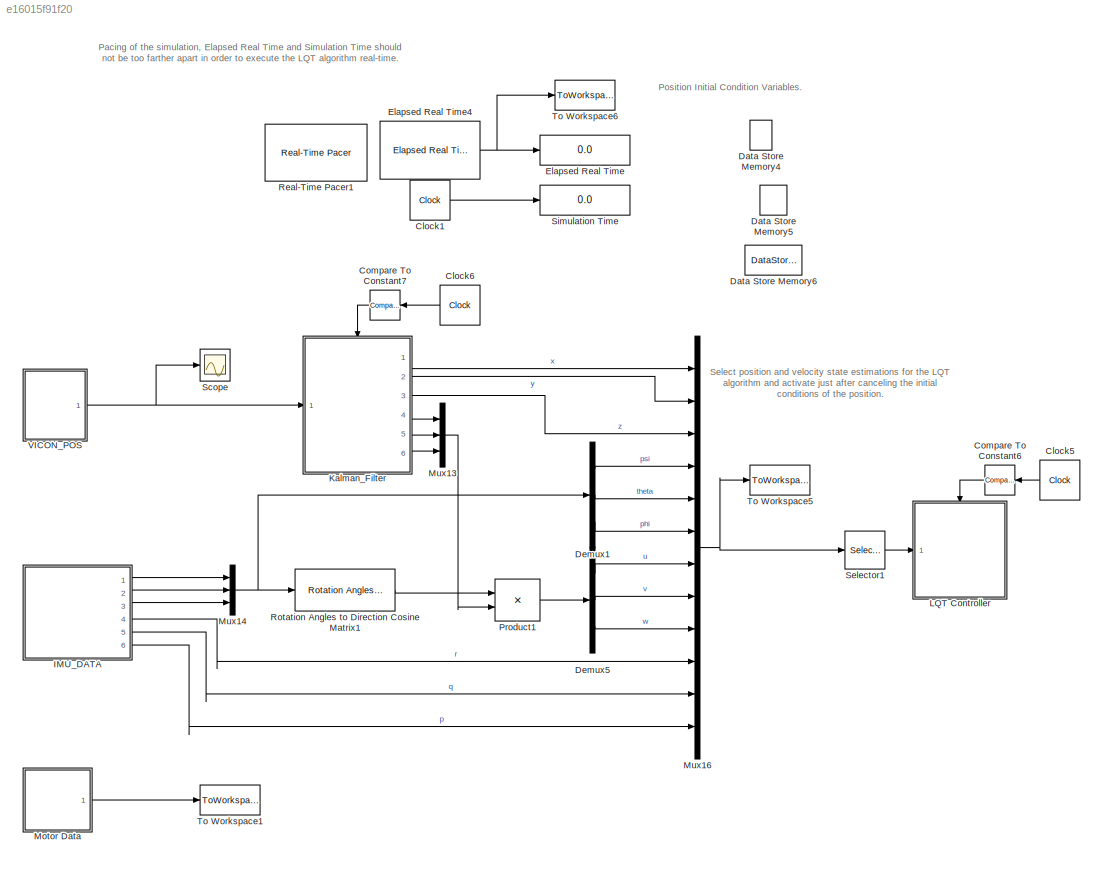
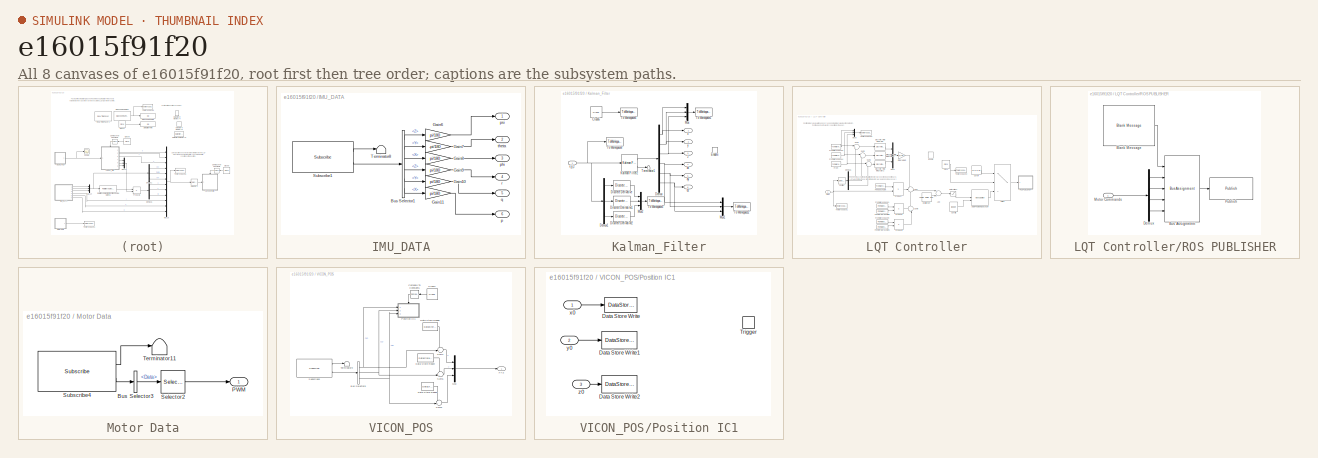
[diagram: thumbnail index - all 8 canvases of the model, root first then tree order]
MODEL slx_e16015f91f20
KIND model
CONFIG AbsTol = auto
CONFIG FixedStep = auto
CONFIG MaxStep = auto
CONFIG MinStep = auto
CONFIG RelTol = 1e-3
CONFIG SampleTimeConstraint = Unconstrained
CONFIG Solver = VariableStepAuto
CONFIG SolverMode = Auto
CONFIG SolverName = VariableStepAuto
CONFIG StartTime = 0.0
CONFIG StopTime = tsim+1
BLOCK [Clock] Clock1
BLOCK [Clock] Clock5
BLOCK [Clock] Clock6
BLOCK [Reference] Compare To Constant6  REF=simulink/Logic and Bit
Operations/Compare
To Constant
  Ports = [1, 1]
  SourceBlock = simulink/Logic and Bit\nOperations/Compare\nTo Constant
  SourceType = Compare To Constant
BLOCK [Reference] Compare To Constant7  REF=simulink/Logic and Bit
Operations/Compare
To Constant
  Ports = [1, 1]
  SourceBlock = simulink/Logic and Bit\nOperations/Compare\nTo Constant
  SourceType = Compare To Constant
BLOCK [DataStoreMemory] Data Store Memory4
  DataStoreName = x0
  OutDataTypeStr = double
  ReadBeforeWriteMsg = warning
  SignalType = real
  WriteAfterReadMsg = warning
  WriteAfterWriteMsg = warning
BLOCK [DataStoreMemory] Data Store Memory5
  DataStoreName = y0
  OutDataTypeStr = double
  ReadBeforeWriteMsg = warning
  SignalType = real
  WriteAfterReadMsg = warning
  WriteAfterWriteMsg = warning
BLOCK [DataStoreMemory] Data Store Memory6
  DataStoreName = z0
  OutDataTypeStr = double
  ReadBeforeWriteMsg = warning
  SignalType = real
  WriteAfterReadMsg = warning
  WriteAfterWriteMsg = warning
BLOCK [Demux] Demux1
  DisplayOption = bar
  Outputs = 3
  Ports = [1, 3]
BLOCK [Demux] Demux5
  DisplayOption = bar
  Outputs = 3
  Ports = [1, 3]
BLOCK [Display] Elapsed Real Time
  Decimation = 2
  Ports = [1]
BLOCK [Reference] Elapsed Real Time4  REF=realtime_pacer_lib/Elapsed Real Time
  Ports = [0, 1]
  SourceBlock = realtime_pacer_lib/Elapsed Real Time
  SourceType = RealTime_Elapsed
BLOCK [SubSystem] IMU_DATA
  Ports = [0, 6]
  RequestExecContextInheritance = off
  Variant = off
BLOCK [BusSelector] IMU_DATA/Bus Selector1
  OutputSignals = AngularVelocity.Z,AngularVelocity.Y,AngularVelocity.X,LinearAcceleration.Z,LinearAcceleration.Y,LinearAcceleration.X
  Ports = [1, 6]
BLOCK [Gain] IMU_DATA/Gain10
  Gain = pi/180
  OutDataTypeStr = Inherit: Inherit via internal rule
  ParamDataTypeStr = Inherit: Inherit via internal rule
  SaturateOnIntegerOverflow = off
BLOCK [Gain] IMU_DATA/Gain11
  Gain = pi/180
  OutDataTypeStr = Inherit: Inherit via internal rule
  ParamDataTypeStr = Inherit: Inherit via internal rule
  SaturateOnIntegerOverflow = off
BLOCK [Gain] IMU_DATA/Gain6
  Gain = pi/180
  OutDataTypeStr = Inherit: Inherit via internal rule
  ParamDataTypeStr = Inherit: Inherit via internal rule
  SaturateOnIntegerOverflow = off
BLOCK [Gain] IMU_DATA/Gain7
  Gain = -pi/180
  OutDataTypeStr = Inherit: Inherit via internal rule
  ParamDataTypeStr = Inherit: Inherit via internal rule
  SaturateOnIntegerOverflow = off
BLOCK [Gain] IMU_DATA/Gain8
  Gain = pi/180
  OutDataTypeStr = Inherit: Inherit via internal rule
  ParamDataTypeStr = Inherit: Inherit via internal rule
  SaturateOnIntegerOverflow = off
BLOCK [Gain] IMU_DATA/Gain9
  Gain = pi/180
  OutDataTypeStr = Inherit: Inherit via internal rule
  ParamDataTypeStr = Inherit: Inherit via internal rule
  SaturateOnIntegerOverflow = off
BLOCK [Reference] IMU_DATA/Subscribe1  REF=robotlib/Subscribe
  Ports = [0, 2]
  SourceBlock = robotlib/Subscribe
  SourceLibraryInfo = This block requires Robotics System Toolbox
  SourceType = ROS Subscribe
BLOCK [Terminator] IMU_DATA/Terminator8
BLOCK [Outport] IMU_DATA/p
  IconDisplay = Port number
  Port = 6
BLOCK [Outport] IMU_DATA/phi
  IconDisplay = Port number
  Port = 3
BLOCK [Outport] IMU_DATA/psi
  IconDisplay = Port number
BLOCK [Outport] IMU_DATA/q
  IconDisplay = Port number
  Port = 5
BLOCK [Outport] IMU_DATA/r
  IconDisplay = Port number
  Port = 4
BLOCK [Outport] IMU_DATA/theta
  IconDisplay = Port number
  Port = 2
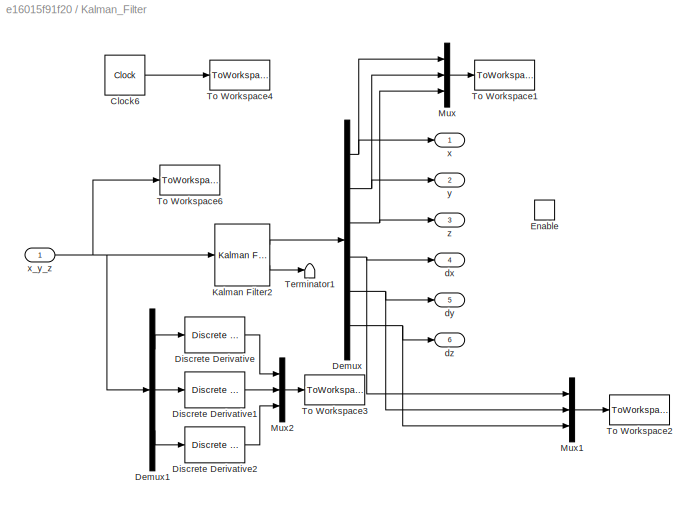
BLOCK [SubSystem] Kalman_Filter
  Ports = [1, 6, 1]
  RequestExecContextInheritance = off
  Variant = off
BLOCK [Clock] Kalman_Filter/Clock6
BLOCK [Demux] Kalman_Filter/Demux
  DisplayOption = bar
  Outputs = 6
  Ports = [1, 6]
BLOCK [Demux] Kalman_Filter/Demux1
  DisplayOption = bar
  Outputs = 3
  Ports = [1, 3]
BLOCK [Reference] Kalman_Filter/Discrete Derivative  REF=simulink/Discrete/Discrete Derivative
  Ports = [1, 1]
  SourceBlock = simulink/Discrete/Discrete Derivative
  SourceType = Discrete Derivative
BLOCK [Reference] Kalman_Filter/Discrete Derivative1  REF=simulink/Discrete/Discrete Derivative
  Ports = [1, 1]
  SourceBlock = simulink/Discrete/Discrete Derivative
  SourceType = Discrete Derivative
BLOCK [Reference] Kalman_Filter/Discrete Derivative2  REF=simulink/Discrete/Discrete Derivative
  Ports = [1, 1]
  SourceBlock = simulink/Discrete/Discrete Derivative
  SourceType = Discrete Derivative
BLOCK [EnablePort] Kalman_Filter/Enable
  Ports = []
BLOCK [Reference] Kalman_Filter/Kalman Filter2  REF=ctrlSharedLib/Kalman Filter
  Ports = [1, 2]
  SourceBlock = ctrlSharedLib/Kalman Filter
  SourceType = ctrlKalmanFilter
BLOCK [Mux] Kalman_Filter/Mux
  DisplayOption = bar
  Inputs = 3
  Ports = [3, 1]
BLOCK [Mux] Kalman_Filter/Mux1
  DisplayOption = bar
  Inputs = 3
  Ports = [3, 1]
BLOCK [Mux] Kalman_Filter/Mux2
  DisplayOption = bar
  Inputs = 3
  Ports = [3, 1]
BLOCK [Terminator] Kalman_Filter/Terminator1
BLOCK [ToWorkspace] Kalman_Filter/To Workspace1
  FixptAsFi = on
  MaxDataPoints = inf
  Ports = [1]
  SampleTime = Ts
  Save2DSignal = 3-D array (concatenate along third dimension)
  VariableName = xyz_hat
BLOCK [ToWorkspace] Kalman_Filter/To Workspace2
  FixptAsFi = on
  MaxDataPoints = inf
  Ports = [1]
  SampleTime = Ts
  Save2DSignal = 3-D array (concatenate along third dimension)
  VariableName = dxyz_hat
BLOCK [ToWorkspace] Kalman_Filter/To Workspace3
  FixptAsFi = on
  MaxDataPoints = inf
  Ports = [1]
  SampleTime = Ts
  Save2DSignal = 3-D array (concatenate along third dimension)
  VariableName = dxyz
BLOCK [ToWorkspace] Kalman_Filter/To Workspace4
  FixptAsFi = on
  MaxDataPoints = inf
  Ports = [1]
  SampleTime = Ts
  Save2DSignal = 3-D array (concatenate along third dimension)
  VariableName = t_kal
BLOCK [ToWorkspace] Kalman_Filter/To Workspace6
  FixptAsFi = on
  MaxDataPoints = inf
  Ports = [1]
  SampleTime = Ts
  Save2DSignal = 3-D array (concatenate along third dimension)
  VariableName = xyz
BLOCK [Outport] Kalman_Filter/dx
  IconDisplay = Port number
  Port = 4
BLOCK [Outport] Kalman_Filter/dy
  IconDisplay = Port number
  Port = 5
BLOCK [Outport] Kalman_Filter/dz
  IconDisplay = Port number
  Port = 6
BLOCK [Outport] Kalman_Filter/x
  IconDisplay = Port number
BLOCK [Inport] Kalman_Filter/x_y_z
  IconDisplay = Port number
BLOCK [Outport] Kalman_Filter/y
  IconDisplay = Port number
  Port = 2
BLOCK [Outport] Kalman_Filter/z
  IconDisplay = Port number
  Port = 3
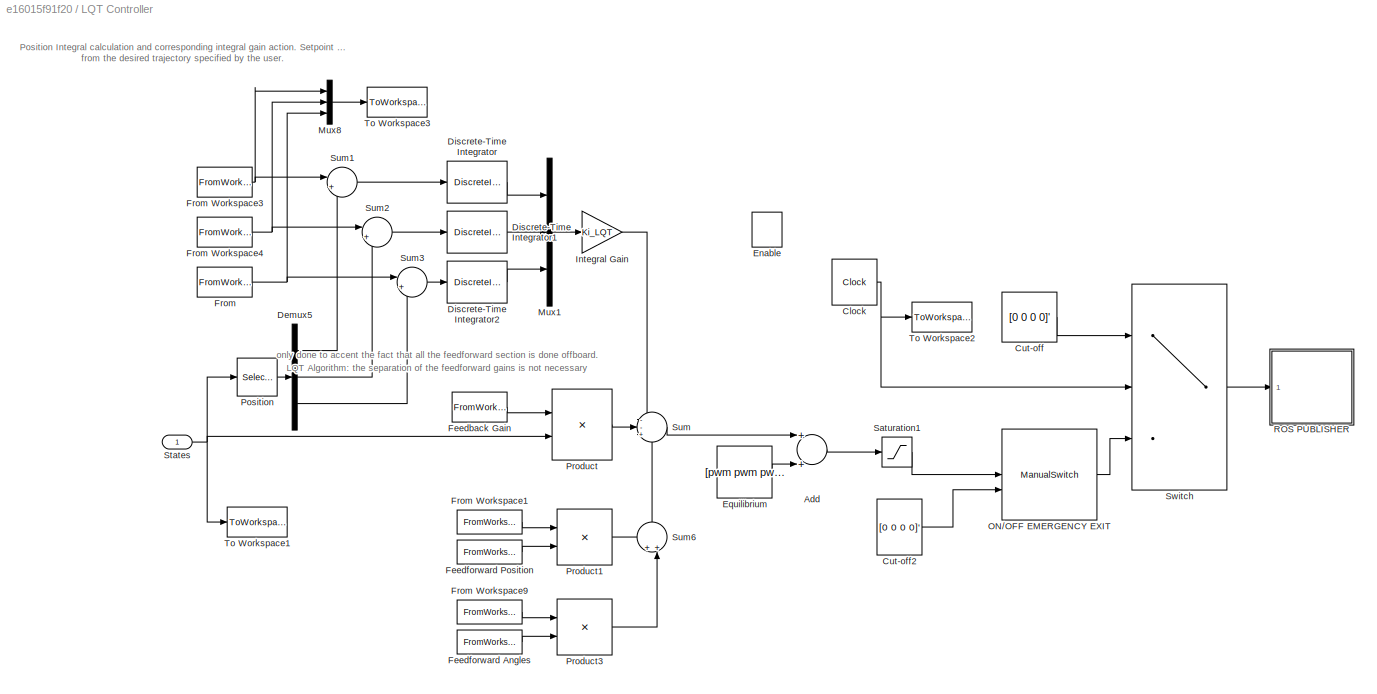
BLOCK [SubSystem] LQT Controller
  Ports = [1, 0, 1]
  RequestExecContextInheritance = off
  Variant = off
BLOCK [Sum] LQT Controller/Add
  InputSameDT = off
  OutDataTypeStr = Inherit: Inherit via internal rule
  Ports = [2, 1]
  SaturateOnIntegerOverflow = off
BLOCK [Clock] LQT Controller/Clock
BLOCK [Constant] LQT Controller/Cut-off
  Value = [0 0 0 0]'
BLOCK [Constant] LQT Controller/Cut-off2
  Value = [0 0 0 0]'
BLOCK [Demux] LQT Controller/Demux5
  DisplayOption = bar
  Outputs = 3
  Ports = [1, 3]
BLOCK [DiscreteIntegrator] LQT Controller/Discrete-Time Integrator
  ICPrevOutput = DiscIntNeverNeededParam
  ICPrevScaledInput = DiscIntNeverNeededParam
  InitialConditionSetting = State (most efficient)
  LimitOutput = on
  LowerSaturationLimit = -1000
  Ports = [1, 1]
  SampleTime = Ts
  UpperSaturationLimit = 1000
  gainval = 1
BLOCK [DiscreteIntegrator] LQT Controller/Discrete-Time Integrator1
  ICPrevOutput = DiscIntNeverNeededParam
  ICPrevScaledInput = DiscIntNeverNeededParam
  InitialConditionSetting = State (most efficient)
  LimitOutput = on
  LowerSaturationLimit = -1000
  Ports = [1, 1]
  SampleTime = Ts
  UpperSaturationLimit = 1000
  gainval = 1
BLOCK [DiscreteIntegrator] LQT Controller/Discrete-Time Integrator2
  ICPrevOutput = DiscIntNeverNeededParam
  ICPrevScaledInput = DiscIntNeverNeededParam
  InitialConditionSetting = State (most efficient)
  LimitOutput = on
  LowerSaturationLimit = -1000
  Ports = [1, 1]
  SampleTime = Ts
  UpperSaturationLimit = 1000
  gainval = 1
BLOCK [EnablePort] LQT Controller/Enable
  Ports = []
BLOCK [Constant] LQT Controller/Equilibrium
  Value = [pwm pwm pwm pwm]'
BLOCK [FromWorkspace] LQT Controller/Feedback Gain
  SampleTime = Ts
  VariableName = L_sim
  ZeroCross = on
BLOCK [FromWorkspace] LQT Controller/Feedforward Angles
  SampleTime = Ts
  VariableName = g_sim1
  ZeroCross = on
BLOCK [FromWorkspace] LQT Controller/Feedforward Position 
  SampleTime = Ts
  VariableName = g_sim
  ZeroCross = on
BLOCK [FromWorkspace] LQT Controller/From
  SampleTime = Ts
  VariableName = z_des
  ZeroCross = on
BLOCK [FromWorkspace] LQT Controller/From Workspace1
  SampleTime = Ts
  VariableName = Lg_sim
  ZeroCross = on
BLOCK [FromWorkspace] LQT Controller/From Workspace3
  SampleTime = Ts
  VariableName = x_des
  ZeroCross = on
BLOCK [FromWorkspace] LQT Controller/From Workspace4
  SampleTime = Ts
  VariableName = y_des
  ZeroCross = on
BLOCK [FromWorkspace] LQT Controller/From Workspace9
  SampleTime = Ts
  VariableName = Lg_sim1
  ZeroCross = on
BLOCK [Gain] LQT Controller/Integral Gain
  Gain = Ki_LQT
  Multiplication = Matrix(K*u)
  OutDataTypeStr = Inherit: Inherit via internal rule
  ParamDataTypeStr = Inherit: Inherit via internal rule
  SaturateOnIntegerOverflow = off
BLOCK [Mux] LQT Controller/Mux1
  DisplayOption = bar
  Inputs = 3
  Ports = [3, 1]
BLOCK [Mux] LQT Controller/Mux8
  DisplayOption = bar
  Inputs = 3
  Ports = [3, 1]
BLOCK [ManualSwitch] LQT Controller/ON//OFF EMERGENCY EXIT
  CurrentSetting = 0
BLOCK [Selector] LQT Controller/Position
  IndexOptions = Index vector (dialog)
  Indices = [1 2 3]
  InputPortWidth = 6
  OutputSizes = 1
  Ports = [1, 1]
BLOCK [Product] LQT Controller/Product
  InputSameDT = off
  Multiplication = Matrix(*)
  OutDataTypeStr = Inherit: Inherit via internal rule
  Ports = [2, 1]
  RndMeth = Floor
  SaturateOnIntegerOverflow = off
BLOCK [Product] LQT Controller/Product1
  InputSameDT = off
  Multiplication = Matrix(*)
  OutDataTypeStr = Inherit: Inherit via internal rule
  Ports = [2, 1]
  RndMeth = Floor
  SaturateOnIntegerOverflow = off
BLOCK [Product] LQT Controller/Product3
  InputSameDT = off
  Multiplication = Matrix(*)
  OutDataTypeStr = Inherit: Inherit via internal rule
  Ports = [2, 1]
  RndMeth = Floor
  SaturateOnIntegerOverflow = off
BLOCK [SubSystem] LQT Controller/ROS PUBLISHER
  Ports = [1]
  RequestExecContextInheritance = off
  Variant = off
BLOCK [Reference] LQT Controller/ROS PUBLISHER/Blank Message  REF=robotlib/Blank Message
  Ports = [0, 1]
  SourceBlock = robotlib/Blank Message
  SourceLibraryInfo = This block requires Robotics System Toolbox
  SourceType = ROS Blank Message
BLOCK [BusAssignment] LQT Controller/ROS PUBLISHER/Bus Assignment
  AssignedSignals = Linear.X,Linear.Y,Linear.Z,Angular.Z
  Ports = [5, 1]
BLOCK [Demux] LQT Controller/ROS PUBLISHER/Demux
  DisplayOption = bar
  Ports = [1, 4]
BLOCK [Inport] LQT Controller/ROS PUBLISHER/Motor Commands
  IconDisplay = Port number
BLOCK [Reference] LQT Controller/ROS PUBLISHER/Publish  REF=robotlib/Publish
  Ports = [1]
  SourceBlock = robotlib/Publish
  SourceLibraryInfo = This block requires Robotics System Toolbox
  SourceType = ROS Publish
BLOCK [Saturate] LQT Controller/Saturation1
  InputPortMap = u0
  Ports = [1, 1]
  UpperLimit = 60000
BLOCK [Inport] LQT Controller/States
  IconDisplay = Port number
BLOCK [Sum] LQT Controller/Sum
  IconShape = round
  InputSameDT = off
  Inputs = --+
  OutDataTypeStr = Inherit: Inherit via internal rule
  Ports = [3, 1]
  SaturateOnIntegerOverflow = off
BLOCK [Sum] LQT Controller/Sum1
  IconShape = round
  InputSameDT = off
  Inputs = |+-
  OutDataTypeStr = Inherit: Inherit via internal rule
  Ports = [2, 1]
  SaturateOnIntegerOverflow = off
BLOCK [Sum] LQT Controller/Sum2
  IconShape = round
  InputSameDT = off
  Inputs = |+-
  OutDataTypeStr = Inherit: Inherit via internal rule
  Ports = [2, 1]
  SaturateOnIntegerOverflow = off
BLOCK [Sum] LQT Controller/Sum3
  IconShape = round
  InputSameDT = off
  Inputs = |+-
  OutDataTypeStr = Inherit: Inherit via internal rule
  Ports = [2, 1]
  SaturateOnIntegerOverflow = off
BLOCK [Sum] LQT Controller/Sum6
  IconShape = round
  InputSameDT = off
  Inputs = ++|
  OutDataTypeStr = Inherit: Inherit via internal rule
  Ports = [2, 1]
  SaturateOnIntegerOverflow = off
BLOCK [Switch] LQT Controller/Switch
  Criteria = u2 > Threshold
  InputSameDT = off
  SaturateOnIntegerOverflow = off
  Threshold = tsim
BLOCK [ToWorkspace] LQT Controller/To Workspace1
  FixptAsFi = on
  MaxDataPoints = inf
  Ports = [1]
  SampleTime = Ts
  Save2DSignal = 3-D array (concatenate along third dimension)
  VariableName = states
BLOCK [ToWorkspace] LQT Controller/To Workspace2
  FixptAsFi = on
  MaxDataPoints = inf
  Ports = [1]
  SampleTime = Ts
  Save2DSignal = 3-D array (concatenate along third dimension)
  VariableName = t
BLOCK [ToWorkspace] LQT Controller/To Workspace3
  FixptAsFi = on
  MaxDataPoints = inf
  Ports = [1]
  SampleTime = Ts
  Save2DSignal = 3-D array (concatenate along third dimension)
  VariableName = z_sim
BLOCK [SubSystem] Motor Data
  Ports = [0, 1]
  RequestExecContextInheritance = off
  Variant = off
BLOCK [BusSelector] Motor Data/Bus Selector3
  Commented = on
  OutputSignals = Data
  Ports = [1, 1]
BLOCK [Outport] Motor Data/PWM
  IconDisplay = Port number
BLOCK [Selector] Motor Data/Selector2
  Commented = on
  IndexOptions = Index vector (dialog)
  Indices = [1 2 3 4]
  InputPortWidth = 128
  OutputSizes = 1
  Ports = [1, 1]
BLOCK [Reference] Motor Data/Subscribe4  REF=robotlib/Subscribe
  Commented = on
  Ports = [0, 2]
  SourceBlock = robotlib/Subscribe
  SourceLibraryInfo = This block requires Robotics System Toolbox
  SourceType = ROS Subscribe
BLOCK [Terminator] Motor Data/Terminator11
  Commented = on
BLOCK [Mux] Mux13
  DisplayOption = bar
  Inputs = 3
  Ports = [3, 1]
BLOCK [Mux] Mux14
  DisplayOption = bar
  Inputs = 3
  Ports = [3, 1]
BLOCK [Mux] Mux16
  DisplayOption = bar
  Inputs = 12
  Ports = [12, 1]
BLOCK [Product] Product1
  InputSameDT = off
  Multiplication = Matrix(*)
  OutDataTypeStr = Inherit: Inherit via internal rule
  Ports = [2, 1]
  RndMeth = Floor
  SaturateOnIntegerOverflow = off
BLOCK [Reference] Real-Time Pacer1  REF=realtime_pacer_lib/Real-Time Pacer
  Ports = []
  SourceBlock = realtime_pacer_lib/Real-Time Pacer
  SourceType = RealTime_Pacer
BLOCK [Reference] Rotation Angles to Direction Cosine Matrix1  REF=aerolibtransform2/Rotation Angles to
Direction Cosine Matrix
  AttributesFormatString = Rotation Order: %<rotationOrder>
  Ports = [1, 1]
  SourceBlock = aerolibtransform2/Rotation Angles to\nDirection Cosine Matrix
  SourceType = Ang2DCM
BLOCK [Scope] Scope
  Ports = [1]
  ScopeSpecificationString = Simulink.scopes.TimeScopeBlockCfg('CurrentConfiguration', extmgr.ConfigurationSet(extmgr.Configuration('Core','General UI',true),extmgr.Configuration('Core','Source UI',true),extmgr.Configuration('Sources','WiredSimulink',true),extmgr.Configuration('Visuals','Time Domain',true,'SerializedDisplays',{struct('MinYLimReal','-0.11433','MaxYLimReal','0.04524','YLabelReal','','MinYLimMag','0.00000','MaxY...<+1407ch>
BLOCK [Selector] Selector1
  IndexOptions = Index vector (dialog)
  Indices = [1 2 3 7 8 9]
  InputPortWidth = 12
  OutputSizes = 1
  Ports = [1, 1]
BLOCK [Display] Simulation Time
  Decimation = 2
  Ports = [1]
BLOCK [ToWorkspace] To Workspace1
  Commented = on
  FixptAsFi = on
  MaxDataPoints = inf
  Ports = [1]
  SampleTime = Ts
  Save2DSignal = 3-D array (concatenate along third dimension)
  VariableName = motors2
BLOCK [ToWorkspace] To Workspace5
  FixptAsFi = on
  MaxDataPoints = inf
  Ports = [1]
  SampleTime = Ts
  Save2DSignal = 3-D array (concatenate along third dimension)
  VariableName = states_all
BLOCK [ToWorkspace] To Workspace6
  FixptAsFi = on
  MaxDataPoints = inf
  Ports = [1]
  SampleTime = Ts
  Save2DSignal = 3-D array (concatenate along third dimension)
  VariableName = t_real
BLOCK [SubSystem] VICON_POS
  Ports = [0, 1]
  RequestExecContextInheritance = off
  Variant = off
BLOCK [BusSelector] VICON_POS/Bus Selector5
  OutputSignals = X,Y,Z
  Ports = [1, 3]
BLOCK [Clock] VICON_POS/Clock7
BLOCK [Reference] VICON_POS/Compare To Constant5  REF=simulink/Logic and Bit
Operations/Compare
To Constant
  Ports = [1, 1]
  SourceBlock = simulink/Logic and Bit\nOperations/Compare\nTo Constant
  SourceType = Compare To Constant
BLOCK [DataStoreRead] VICON_POS/Data Store Read4
  DataStoreName = y0
  Ports = [0, 1]
  SampleTime = Ts
BLOCK [DataStoreRead] VICON_POS/Data Store Read5
  DataStoreName = x0
  Ports = [0, 1]
  SampleTime = Ts
BLOCK [DataStoreRead] VICON_POS/Data Store Read6
  DataStoreName = z0
  Ports = [0, 1]
  SampleTime = Ts
BLOCK [Mux] VICON_POS/Mux
  DisplayOption = bar
  Inputs = 3
  Ports = [3, 1]
BLOCK [SubSystem] VICON_POS/Position IC1
  Ports = [3, 0, 0, 1]
  RequestExecContextInheritance = off
  Variant = off
BLOCK [DataStoreWrite] VICON_POS/Position IC1/Data Store Write
  DataStoreName = x0
  Ports = [1]
BLOCK [DataStoreWrite] VICON_POS/Position IC1/Data Store Write1
  DataStoreName = y0
  Ports = [1]
BLOCK [DataStoreWrite] VICON_POS/Position IC1/Data Store Write2
  DataStoreName = z0
  Ports = [1]
BLOCK [TriggerPort] VICON_POS/Position IC1/Trigger
  PortDimensions = 1
  Ports = []
  StatesWhenEnabling = held
BLOCK [Inport] VICON_POS/Position IC1/x0
  IconDisplay = Port number
BLOCK [Inport] VICON_POS/Position IC1/y0
  IconDisplay = Port number
  Port = 2
BLOCK [Inport] VICON_POS/Position IC1/z0
  IconDisplay = Port number
  Port = 3
BLOCK [Reference] VICON_POS/Subscribe3  REF=robotlib/Subscribe
  Ports = [0, 2]
  SourceBlock = robotlib/Subscribe
  SourceLibraryInfo = This block requires Robotics System Toolbox
  SourceType = ROS Subscribe
BLOCK [Sum] VICON_POS/Sum4
  IconShape = round
  InputSameDT = off
  Inputs = -+|
  OutDataTypeStr = Inherit: Inherit via internal rule
  Ports = [2, 1]
  SaturateOnIntegerOverflow = off
BLOCK [Sum] VICON_POS/Sum5
  IconShape = round
  InputSameDT = off
  Inputs = -+|
  OutDataTypeStr = Inherit: Inherit via internal rule
  Ports = [2, 1]
  SaturateOnIntegerOverflow = off
BLOCK [Sum] VICON_POS/Sum6
  IconShape = round
  InputSameDT = off
  Inputs = -+|
  OutDataTypeStr = Inherit: Inherit via internal rule
  Ports = [2, 1]
  SaturateOnIntegerOverflow = off
BLOCK [Terminator] VICON_POS/Terminator9
BLOCK [Outport] VICON_POS/XYZ
  IconDisplay = Port number
ANNOTATION (root): Pacing of the simulation, Elapsed Real Time and Simulation Time should not be too farther apart in order to execute the LQT algorithm real-time.
ANNOTATION (root): Position Initial Condition Variables.
ANNOTATION (root): Select position and velocity state estimations for the LQT algorithm and activate just after canceling the initial conditions of the position.
ANNOTATION LQT Controller: LQT Algorithm: the separation of the feedforward gains is not necessary only done to accent the fact that all the feedforward section is done offboard.
ANNOTATION LQT Controller: Position Integral calculation and corresponding integral gain action. Setpoint is coming from the desired trajectory specified by the user.
LINE Clock1:1 -> Simulation Time:1
LINE Clock5:1 -> Compare To Constant6:1
LINE Clock6:1 -> Compare To Constant7:1
LINE Compare To Constant6:1 -> LQT Controller:enable
LINE Compare To Constant7:1 -> Kalman_Filter:enable
LINE Demux1:1 -> Mux16:4
LINE Demux1:2 -> Mux16:5
LINE Demux1:3 -> Mux16:6
LINE Demux5:1 -> Mux16:7
LINE Demux5:2 -> Mux16:8
LINE Demux5:3 -> Mux16:9
NET Elapsed Real Time4:1 -> Elapsed Real Time:1, To Workspace6:1
LINE IMU_DATA/Bus Selector1:1 -> IMU_DATA/Gain6:1
LINE IMU_DATA/Bus Selector1:2 -> IMU_DATA/Gain7:1
LINE IMU_DATA/Bus Selector1:3 -> IMU_DATA/Gain8:1
LINE IMU_DATA/Bus Selector1:4 -> IMU_DATA/Gain9:1
LINE IMU_DATA/Bus Selector1:5 -> IMU_DATA/Gain10:1
LINE IMU_DATA/Bus Selector1:6 -> IMU_DATA/Gain11:1
LINE IMU_DATA/Gain10:1 -> IMU_DATA/q:1
LINE IMU_DATA/Gain11:1 -> IMU_DATA/p:1
LINE IMU_DATA/Gain6:1 -> IMU_DATA/psi:1
LINE IMU_DATA/Gain7:1 -> IMU_DATA/theta:1
LINE IMU_DATA/Gain8:1 -> IMU_DATA/phi:1
LINE IMU_DATA/Gain9:1 -> IMU_DATA/r:1
LINE IMU_DATA/Subscribe1:1 -> IMU_DATA/Terminator8:1
LINE IMU_DATA/Subscribe1:2 -> IMU_DATA/Bus Selector1:1
LINE IMU_DATA:1 -> Mux14:1
LINE IMU_DATA:2 -> Mux14:2
LINE IMU_DATA:3 -> Mux14:3
LINE IMU_DATA:4 -> Mux16:10
LINE IMU_DATA:5 -> Mux16:11
LINE IMU_DATA:6 -> Mux16:12
LINE Kalman_Filter/Clock6:1 -> Kalman_Filter/To Workspace4:1
LINE Kalman_Filter/Demux1:1 -> Kalman_Filter/Discrete Derivative:1
LINE Kalman_Filter/Demux1:2 -> Kalman_Filter/Discrete Derivative1:1
LINE Kalman_Filter/Demux1:3 -> Kalman_Filter/Discrete Derivative2:1
NET Kalman_Filter/Demux:1 -> Kalman_Filter/Mux:1, Kalman_Filter/x:1
NET Kalman_Filter/Demux:2 -> Kalman_Filter/Mux:2, Kalman_Filter/y:1
NET Kalman_Filter/Demux:3 -> Kalman_Filter/Mux:3, Kalman_Filter/z:1
NET Kalman_Filter/Demux:4 -> Kalman_Filter/Mux1:1, Kalman_Filter/dx:1
NET Kalman_Filter/Demux:5 -> Kalman_Filter/Mux1:2, Kalman_Filter/dy:1
NET Kalman_Filter/Demux:6 -> Kalman_Filter/Mux1:3, Kalman_Filter/dz:1
LINE Kalman_Filter/Discrete Derivative1:1 -> Kalman_Filter/Mux2:2
LINE Kalman_Filter/Discrete Derivative2:1 -> Kalman_Filter/Mux2:3
LINE Kalman_Filter/Discrete Derivative:1 -> Kalman_Filter/Mux2:1
LINE Kalman_Filter/Kalman Filter2:1 -> Kalman_Filter/Demux:1
LINE Kalman_Filter/Kalman Filter2:2 -> Kalman_Filter/Terminator1:1
LINE Kalman_Filter/Mux1:1 -> Kalman_Filter/To Workspace2:1
LINE Kalman_Filter/Mux2:1 -> Kalman_Filter/To Workspace3:1
LINE Kalman_Filter/Mux:1 -> Kalman_Filter/To Workspace1:1
NET Kalman_Filter/x_y_z:1 -> Kalman_Filter/Demux1:1, Kalman_Filter/Kalman Filter2:1, Kalman_Filter/To Workspace6:1
LINE Kalman_Filter:1 -> Mux16:1
LINE Kalman_Filter:2 -> Mux16:2
LINE Kalman_Filter:3 -> Mux16:3
LINE Kalman_Filter:4 -> Mux13:1
LINE Kalman_Filter:5 -> Mux13:2
LINE Kalman_Filter:6 -> Mux13:3
LINE LQT Controller/Add:1 -> LQT Controller/Saturation1:1
NET LQT Controller/Clock:1 -> LQT Controller/Switch:2, LQT Controller/To Workspace2:1
LINE LQT Controller/Cut-off2:1 -> LQT Controller/ON//OFF EMERGENCY EXIT:2
LINE LQT Controller/Cut-off:1 -> LQT Controller/Switch:1
LINE LQT Controller/Demux5:1 -> LQT Controller/Sum1:2
LINE LQT Controller/Demux5:2 -> LQT Controller/Sum2:2
LINE LQT Controller/Demux5:3 -> LQT Controller/Sum3:2
LINE LQT Controller/Discrete-Time Integrator1:1 -> LQT Controller/Mux1:2
LINE LQT Controller/Discrete-Time Integrator2:1 -> LQT Controller/Mux1:3
LINE LQT Controller/Discrete-Time Integrator:1 -> LQT Controller/Mux1:1
LINE LQT Controller/Equilibrium:1 -> LQT Controller/Add:2
LINE LQT Controller/Feedback Gain:1 -> LQT Controller/Product:1
LINE LQT Controller/Feedforward Angles:1 -> LQT Controller/Product3:2
LINE LQT Controller/Feedforward Position :1 -> LQT Controller/Product1:2
LINE LQT Controller/From Workspace1:1 -> LQT Controller/Product1:1
NET LQT Controller/From Workspace3:1 -> LQT Controller/Mux8:1, LQT Controller/Sum1:1
NET LQT Controller/From Workspace4:1 -> LQT Controller/Mux8:2, LQT Controller/Sum2:1
LINE LQT Controller/From Workspace9:1 -> LQT Controller/Product3:1
NET LQT Controller/From:1 -> LQT Controller/Mux8:3, LQT Controller/Sum3:1
LINE LQT Controller/Integral Gain:1 -> LQT Controller/Sum:1
LINE LQT Controller/Mux1:1 -> LQT Controller/Integral Gain:1
LINE LQT Controller/Mux8:1 -> LQT Controller/To Workspace3:1
LINE LQT Controller/ON//OFF EMERGENCY EXIT:1 -> LQT Controller/Switch:3
LINE LQT Controller/Position:1 -> LQT Controller/Demux5:1
LINE LQT Controller/Product1:1 -> LQT Controller/Sum6:1
LINE LQT Controller/Product3:1 -> LQT Controller/Sum6:2
LINE LQT Controller/Product:1 -> LQT Controller/Sum:2
LINE LQT Controller/ROS PUBLISHER/Blank Message:1 -> LQT Controller/ROS PUBLISHER/Bus Assignment:1
LINE LQT Controller/ROS PUBLISHER/Bus Assignment:1 -> LQT Controller/ROS PUBLISHER/Publish:1
LINE LQT Controller/ROS PUBLISHER/Demux:1 -> LQT Controller/ROS PUBLISHER/Bus Assignment:2
LINE LQT Controller/ROS PUBLISHER/Demux:2 -> LQT Controller/ROS PUBLISHER/Bus Assignment:3
LINE LQT Controller/ROS PUBLISHER/Demux:3 -> LQT Controller/ROS PUBLISHER/Bus Assignment:4
LINE LQT Controller/ROS PUBLISHER/Demux:4 -> LQT Controller/ROS PUBLISHER/Bus Assignment:5
LINE LQT Controller/ROS PUBLISHER/Motor Commands:1 -> LQT Controller/ROS PUBLISHER/Demux:1
LINE LQT Controller/Saturation1:1 -> LQT Controller/ON//OFF EMERGENCY EXIT:1
NET LQT Controller/States:1 -> LQT Controller/Position:1, LQT Controller/Product:2, LQT Controller/To Workspace1:1
LINE LQT Controller/Sum1:1 -> LQT Controller/Discrete-Time Integrator:1
LINE LQT Controller/Sum2:1 -> LQT Controller/Discrete-Time Integrator1:1
LINE LQT Controller/Sum3:1 -> LQT Controller/Discrete-Time Integrator2:1
LINE LQT Controller/Sum6:1 -> LQT Controller/Sum:3
LINE LQT Controller/Sum:1 -> LQT Controller/Add:1
LINE LQT Controller/Switch:1 -> LQT Controller/ROS PUBLISHER:1
LINE Motor Data/Bus Selector3:1 -> Motor Data/Selector2:1
LINE Motor Data/Selector2:1 -> Motor Data/PWM:1
LINE Motor Data/Subscribe4:1 -> Motor Data/Terminator11:1
LINE Motor Data/Subscribe4:2 -> Motor Data/Bus Selector3:1
LINE Motor Data:1 -> To Workspace1:1
LINE Mux13:1 -> Product1:2
NET Mux14:1 -> Demux1:1, Rotation Angles to Direction Cosine Matrix1:1
NET Mux16:1 -> Selector1:1, To Workspace5:1
LINE Product1:1 -> Demux5:1
LINE Rotation Angles to Direction Cosine Matrix1:1 -> Product1:1
LINE Selector1:1 -> LQT Controller:1
NET VICON_POS/Bus Selector5:1 -> VICON_POS/Position IC1:1, VICON_POS/Sum4:2
NET VICON_POS/Bus Selector5:2 -> VICON_POS/Position IC1:2, VICON_POS/Sum5:2
NET VICON_POS/Bus Selector5:3 -> VICON_POS/Position IC1:3, VICON_POS/Sum6:2
LINE VICON_POS/Clock7:1 -> VICON_POS/Compare To Constant5:1
LINE VICON_POS/Compare To Constant5:1 -> VICON_POS/Position IC1:trigger
LINE VICON_POS/Data Store Read4:1 -> VICON_POS/Sum5:1
LINE VICON_POS/Data Store Read5:1 -> VICON_POS/Sum4:1
LINE VICON_POS/Data Store Read6:1 -> VICON_POS/Sum6:1
LINE VICON_POS/Mux:1 -> VICON_POS/XYZ:1
LINE VICON_POS/Position IC1/x0:1 -> VICON_POS/Position IC1/Data Store Write:1
LINE VICON_POS/Position IC1/y0:1 -> VICON_POS/Position IC1/Data Store Write1:1
LINE VICON_POS/Position IC1/z0:1 -> VICON_POS/Position IC1/Data Store Write2:1
LINE VICON_POS/Subscribe3:1 -> VICON_POS/Terminator9:1
LINE VICON_POS/Subscribe3:2 -> VICON_POS/Bus Selector5:1
LINE VICON_POS/Sum4:1 -> VICON_POS/Mux:1
LINE VICON_POS/Sum5:1 -> VICON_POS/Mux:2
LINE VICON_POS/Sum6:1 -> VICON_POS/Mux:3
NET VICON_POS:1 -> Kalman_Filter:1, Scope:1
note: NET lines group one-source signal fan-out (src -> all destinations, sorted); 1:1 wires keep LINE
